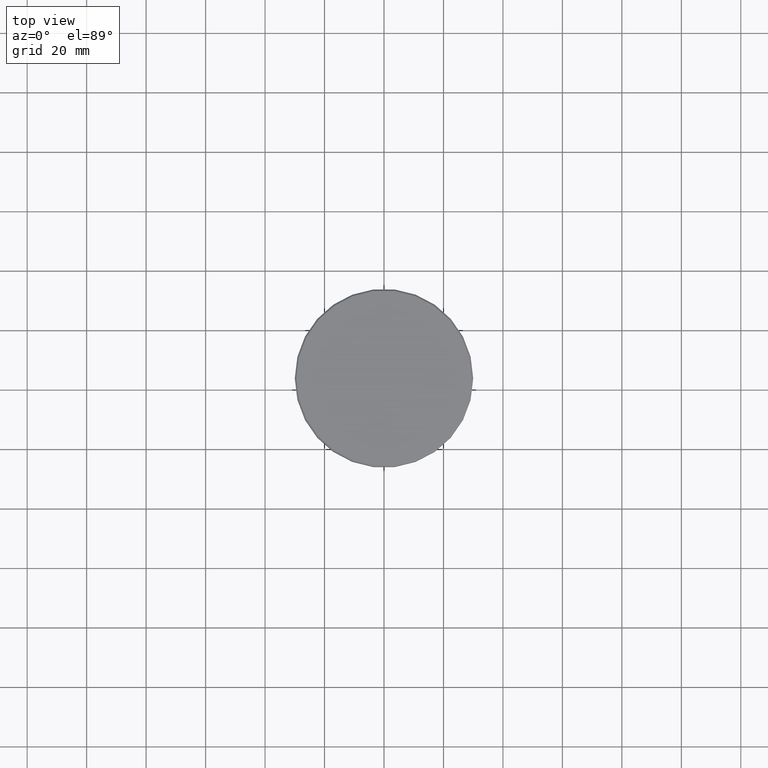
[diagram: clean part render]
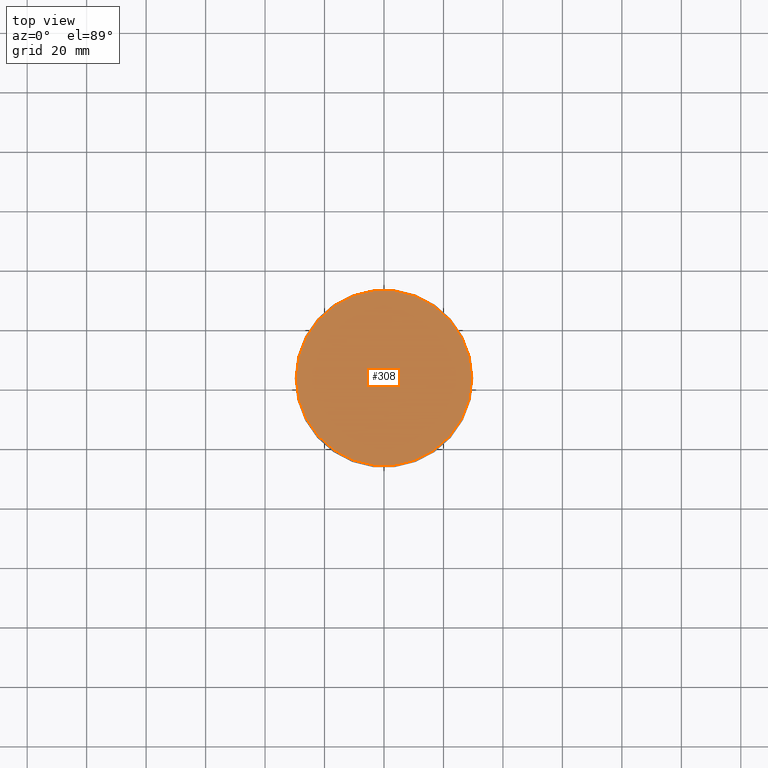
[diagram: same view with one face highlighted and labeled with its STEP entity id]
A machine part, top view. The second image highlights one B-rep face of the part: STEP entity #308.
In plain terms, the highlighted planar face has unit normal (0, -0, 1).
Its self-contained STEP definition (entity closure, byte-faithful):
#19 = ORIENTED_EDGE ( 'NONE', *, *, #625, .T. ) ;
#28 = CIRCLE ( 'NONE', #541, 29.49999999999997158 ) ;
#48 = PLANE ( 'NONE',  #392 ) ;
#96 = DIRECTION ( 'NONE',  ( -0.000000000000000000, -0.000000000000000000, 1.000000000000000000 ) ) ;
#139 = CARTESIAN_POINT ( 'NONE',  ( 0.000000000000000000, 0.000000000000000000, 0.000000000000000000 ) ) ;
#183 = CARTESIAN_POINT ( 'NONE',  ( 0.000000000000000000, 0.000000000000000000, 0.000000000000000000 ) ) ;
#222 = ORIENTED_EDGE ( 'NONE', *, *, #588, .T. ) ;
#308 = ADVANCED_FACE ( 'NONE', ( #945 ), #48, .T. ) ;
#360 = CARTESIAN_POINT ( 'NONE',  ( 0.000000000000000000, 0.000000000000000000, 0.000000000000000000 ) ) ;
#368 = VERTEX_POINT ( 'NONE', #1166 ) ;
#392 = AXIS2_PLACEMENT_3D ( 'NONE', #139, #940, #497 ) ;
#497 = DIRECTION ( 'NONE',  ( 1.000000000000000000, 0.000000000000000000, 0.000000000000000000 ) ) ;
#541 = AXIS2_PLACEMENT_3D ( 'NONE', #183, #1018, #1180 ) ;
#588 = EDGE_CURVE ( 'NONE', #959, #368, #28, .T. ) ;
#616 = CIRCLE ( 'NONE', #910, 29.49999999999997158 ) ;
#625 = EDGE_CURVE ( 'NONE', #368, #959, #616, .T. ) ;
#771 = EDGE_LOOP ( 'NONE', ( #222, #19 ) ) ;
#910 = AXIS2_PLACEMENT_3D ( 'NONE', #360, #96, #1086 ) ;
#940 = DIRECTION ( 'NONE',  ( 0.000000000000000000, -0.000000000000000000, 1.000000000000000000 ) ) ;
#945 = FACE_OUTER_BOUND ( 'NONE', #771, .T. ) ;
#959 = VERTEX_POINT ( 'NONE', #1056 ) ;
#1018 = DIRECTION ( 'NONE',  ( -0.000000000000000000, -0.000000000000000000, 1.000000000000000000 ) ) ;
#1056 = CARTESIAN_POINT ( 'NONE',  ( -29.49999999999997158, 0.000000000000000000, 0.000000000000000000 ) ) ;
#1086 = DIRECTION ( 'NONE',  ( 1.000000000000000000, 0.000000000000000000, 0.000000000000000000 ) ) ;
#1166 = CARTESIAN_POINT ( 'NONE',  ( 29.49999999999997158, 3.643324227463373813E-15, 0.000000000000000000 ) ) ;
#1180 = DIRECTION ( 'NONE',  ( 1.000000000000000000, 0.000000000000000000, 0.000000000000000000 ) ) ;